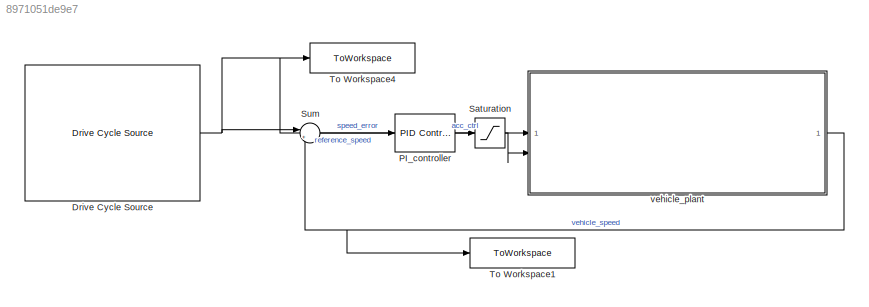
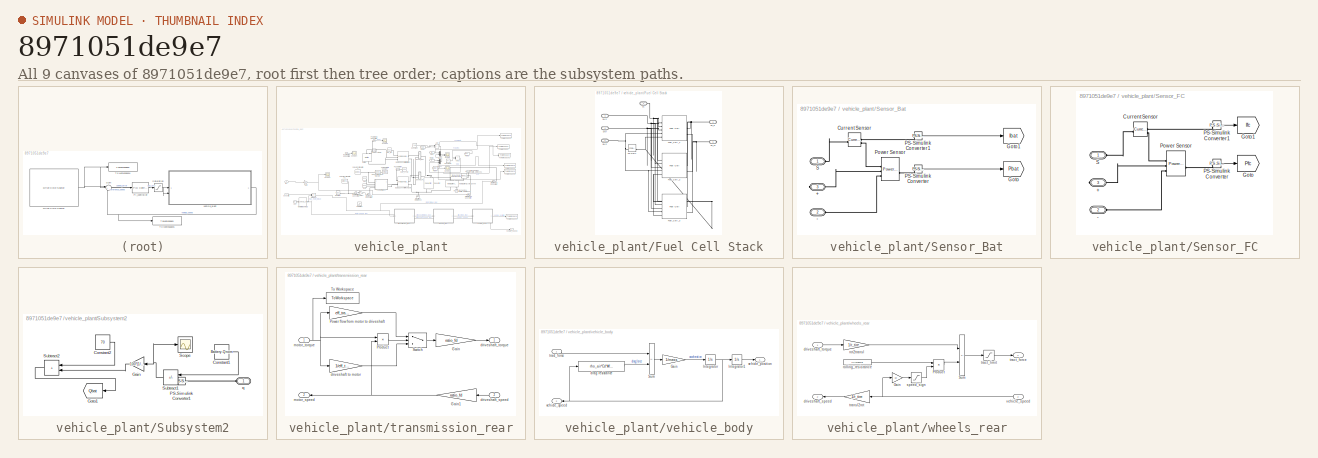
[diagram: thumbnail index - all 9 canvases of the model, root first then tree order]
MODEL slx_8971051de9e7
KIND model
CONFIG AbsTol = auto
CONFIG EnableMultiTasking = off
CONFIG FixedStep = 0.1
CONFIG MaxStep = auto
CONFIG MinStep = auto
CONFIG RelTol = 1e-3
CONFIG SampleTimeConstraint = Unconstrained
CONFIG SolverName = VariableStepAuto
CONFIG StartTime = 0
CONFIG StopTime = 2474
BLOCK [Reference] Drive Cycle Source  REF=autolibshared/Drive Cycle Source
  AttributesFormatString = %<cycleVar> (%<tfinal>)
  LibrarySourceBlock = autolibscenario/Drive Cycle Source
  SourceBlock = autolibshared/Drive Cycle Source
  SourceType = Drive Cycle Source
BLOCK [Reference] PI_controller   REF=slpidlib/PID Controller
  SourceBlock = slpidlib/PID Controller
  SourceType = PID 1dof
BLOCK [Saturate] Saturation
  LowerLimit = -100
  UpperLimit = 100
BLOCK [Sum] Sum
  Inputs = |+-
BLOCK [ToWorkspace] To Workspace1
  FixptAsFi = on
  MaxDataPoints = inf
  SampleTime = -1
  SaveFormat = Timeseries
  VariableName = vehicle_speed
BLOCK [ToWorkspace] To Workspace4
  FixptAsFi = on
  MaxDataPoints = inf
  SampleTime = -1
  SaveFormat = Timeseries
  VariableName = reference_speed
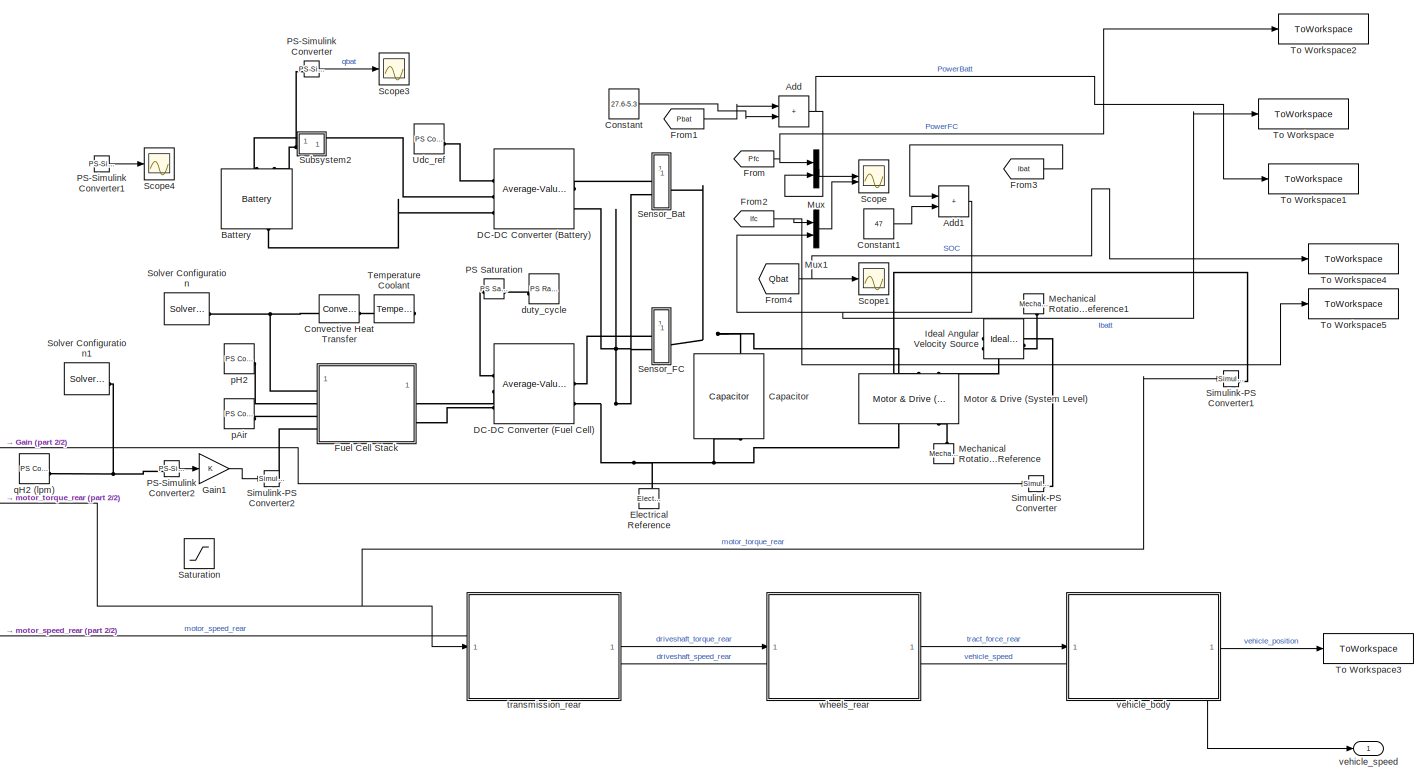
[diagram: vehicle_plant - part 1/2, most of the canvas]
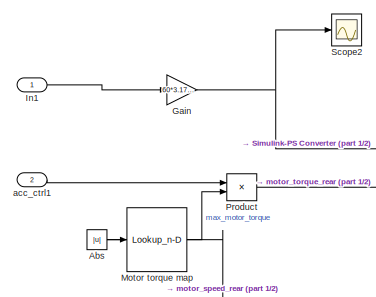
[diagram: vehicle_plant - part 2/2, middle left region]
BLOCK [SubSystem] vehicle_plant
BLOCK [Abs] vehicle_plant/Abs
  SaturateOnIntegerOverflow = off
BLOCK [Sum] vehicle_plant/Add
  IconShape = rectangular
BLOCK [Sum] vehicle_plant/Add1
  IconShape = rectangular
BLOCK [Reference] vehicle_plant/Battery  REF=batteryecm_lib/Battery
  LibrarySourceBlock = ee_lib/Sources/Battery
  NameLocation = right
  SourceBlock = batteryecm_lib/Battery
  SourceType = Battery
BLOCK [Reference] vehicle_plant/Capacitor  REF=fl_lib/Electrical/Electrical Elements/Capacitor
  NameLocation = left
  SourceBlock = fl_lib/Electrical/Electrical Elements/Capacitor
  SourceType = Capacitor
BLOCK [Constant] vehicle_plant/Constant
  Value = 27.6-5.3
BLOCK [Constant] vehicle_plant/Constant1
  Value = 47
BLOCK [Reference] vehicle_plant/Convective Heat Transfer  REF=fl_lib/Thermal/Thermal Elements/Convective Heat
Transfer
  SourceBlock = fl_lib/Thermal/Thermal Elements/Convective Heat\nTransfer
  SourceType = Convective Heat\nTransfer
BLOCK [Reference] vehicle_plant/DC-DC Converter (Battery)  REF=ee_lib/Semiconductors &
Converters/Converters/Average-Value DC-DC
Converter
  SourceBlock = ee_lib/Semiconductors &\nConverters/Converters/Average-Value DC-DC\nConverter
  SourceType = Average-Value DC-DC\nConverter
BLOCK [Reference] vehicle_plant/DC-DC Converter (Fuel Cell)  REF=ee_lib/Semiconductors &
Converters/Converters/Average-Value DC-DC
Converter
  SourceBlock = ee_lib/Semiconductors &\nConverters/Converters/Average-Value DC-DC\nConverter
  SourceType = Average-Value DC-DC\nConverter
BLOCK [Reference] vehicle_plant/Electrical Reference  REF=fl_lib/Electrical/Electrical Elements/Electrical Reference
  NameLocation = right
  SourceBlock = fl_lib/Electrical/Electrical Elements/Electrical Reference
  SourceType = Electrical Reference
BLOCK [From] vehicle_plant/From
  GotoTag = Pfc
  TagVisibility = global
BLOCK [From] vehicle_plant/From1
  GotoTag = Pbat
  TagVisibility = global
BLOCK [From] vehicle_plant/From2
  GotoTag = Ifc
  TagVisibility = global
BLOCK [From] vehicle_plant/From3
  GotoTag = Ibat
  TagVisibility = global
BLOCK [From] vehicle_plant/From4
  GotoTag = Qbat
  TagVisibility = global
BLOCK [SubSystem] vehicle_plant/Fuel Cell Stack
BLOCK [Reference] vehicle_plant/Fuel Cell Stack/Fuel_Cell_1  REF=ee_lib/Sources/Fuel Cell
  SourceBlock = ee_lib/Sources/Fuel Cell
  SourceType = Fuel Cell
BLOCK [Reference] vehicle_plant/Fuel Cell Stack/Fuel_Cell_2  REF=ee_lib/Sources/Fuel Cell
  SourceBlock = ee_lib/Sources/Fuel Cell
  SourceType = Fuel Cell
BLOCK [Reference] vehicle_plant/Fuel Cell Stack/Fuel_Cell_3  REF=ee_lib/Sources/Fuel Cell
  SourceBlock = ee_lib/Sources/Fuel Cell
  SourceType = Fuel Cell
BLOCK [Reference] vehicle_plant/Fuel Cell Stack/PS Gain  REF=fl_lib/Physical Signals/Functions/PS Gain
  SourceBlock = fl_lib/Physical Signals/Functions/PS Gain
  SourceType = PS Gain
BLOCK [PMIOPort] vehicle_plant/Fuel Cell Stack/Th
  Side = Left
BLOCK [PMIOPort] vehicle_plant/Fuel Cell Stack/dc_m
  Port = 5
  Side = Right
BLOCK [PMIOPort] vehicle_plant/Fuel Cell Stack/dc_p
  Port = 2
  Side = Right
BLOCK [PMIOPort] vehicle_plant/Fuel Cell Stack/pAir
  Port = 4
  Side = Left
BLOCK [PMIOPort] vehicle_plant/Fuel Cell Stack/pH2
  Port = 3
  Side = Left
BLOCK [PMIOPort] vehicle_plant/Fuel Cell Stack/qH2
  Port = 6
  Side = Left
BLOCK [Gain] vehicle_plant/Gain
  Gain = 60*3.1746/2*pi
BLOCK [Gain] vehicle_plant/Gain1
BLOCK [Reference] vehicle_plant/Ideal Angular Velocity Source  REF=fl_lib/Mechanical/Mechanical Sources/Ideal Angular
Velocity Source
  NameLocation = top
  SourceBlock = fl_lib/Mechanical/Mechanical Sources/Ideal Angular\nVelocity Source
  SourceType = Ideal Angular\nVelocity Source
BLOCK [Inport] vehicle_plant/In1
BLOCK [Reference] vehicle_plant/Mechanical Rotational Reference  REF=fl_lib/Mechanical/Rotational Elements/Mechanical
Rotational Reference
  NameLocation = right
  SourceBlock = fl_lib/Mechanical/Rotational Elements/Mechanical\nRotational Reference
  SourceType = Mechanical\nRotational Reference
BLOCK [Reference] vehicle_plant/Mechanical Rotational Reference1  REF=fl_lib/Mechanical/Rotational Elements/Mechanical
Rotational Reference
  NameLocation = left
  SourceBlock = fl_lib/Mechanical/Rotational Elements/Mechanical\nRotational Reference
  SourceType = Mechanical\nRotational Reference
BLOCK [Reference] vehicle_plant/Motor & Drive (System Level)  REF=ee_lib/Electromechanical/Motor & Drive
(System Level)
  NameLocation = right
  SourceBlock = ee_lib/Electromechanical/Motor & Drive\n(System Level)
  SourceType = Motor & Drive\n(System Level)
BLOCK [Lookup_n-D] vehicle_plant/Motor torque map
  BreakpointsForDimension1 = EM_Omega_Max
  BreakpointsForDimension2 = alpha
  ExtrapMethod = Clip
  InputPortMap = u0
  InternalRulePriority = Speed
  NumberOfTableDimensions = 1
  RndMeth = Simplest
  Table = EM_Torque_Max
  UseLastTableValue = on
BLOCK [Mux] vehicle_plant/Mux
  DisplayOption = bar
  Inputs = 2
BLOCK [Mux] vehicle_plant/Mux1
  DisplayOption = bar
  Inputs = 2
BLOCK [Reference] vehicle_plant/PS Saturation  REF=fl_lib/Physical Signals/Nonlinear Operators/PS Saturation
  SourceBlock = fl_lib/Physical Signals/Nonlinear Operators/PS Saturation
  SourceType = PS Saturation
BLOCK [Reference] vehicle_plant/PS-Simulink Converter  REF=nesl_utility/PS-Simulink
Converter
  SourceBlock = nesl_utility/PS-Simulink\nConverter
  SourceType = PS-Simulink\nConverter
BLOCK [Reference] vehicle_plant/PS-Simulink Converter1  REF=nesl_utility/PS-Simulink
Converter
  SourceBlock = nesl_utility/PS-Simulink\nConverter
  SourceType = PS-Simulink\nConverter
BLOCK [Reference] vehicle_plant/PS-Simulink Converter2  REF=nesl_utility/PS-Simulink
Converter
  NameLocation = left
  SourceBlock = nesl_utility/PS-Simulink\nConverter
  SourceType = PS-Simulink\nConverter
BLOCK [Product] vehicle_plant/Product
BLOCK [Saturate] vehicle_plant/Saturation
BLOCK [Scope] vehicle_plant/Scope
  Floating = off
  NumInputPorts = 2
  ScopeSpecificationString = Simulink.scopes.TimeScopeBlockCfg('CurrentConfiguration', extmgr.ConfigurationSet(extmgr.Configuration('Core','General UI',true,'FigureColor',[1 1 1]),extmgr.Configuration('Core','Source UI',true),extmgr.Configuration('Sources','WiredSimulink',true,'DataLoggingVariableName','ScopeData2'),extmgr.Configuration('Visuals','Time Domain',true,'SerializedDisplays',{struct('MinYLimReal','-76.3715','MaxYLi...<+2663ch>
BLOCK [Scope] vehicle_plant/Scope1
  Floating = off
  NumInputPorts = 1
  ScopeSpecificationString = Simulink.scopes.TimeScopeBlockCfg('CurrentConfiguration', extmgr.ConfigurationSet(extmgr.Configuration('Core','General UI',true,'FigureColor',[1 1 1]),extmgr.Configuration('Core','Source UI',true),extmgr.Configuration('Sources','WiredSimulink',true,'DataLoggingVariableName','ScopeData3'),extmgr.Configuration('Visuals','Time Domain',true,'SerializedDisplays',{struct('MinYLimReal','67.58809','MaxYLi...<+2340ch>
BLOCK [Scope] vehicle_plant/Scope2
  Floating = off
  NumInputPorts = 1
  ScopeSpecificationString = Simulink.scopes.TimeScopeBlockCfg('CurrentConfiguration', extmgr.ConfigurationSet(extmgr.Configuration('Core','General UI',true),extmgr.Configuration('Core','Source UI',true),extmgr.Configuration('Sources','WiredSimulink',true,'DataLoggingVariableName','ScopeData1'),extmgr.Configuration('Visuals','Time Domain',true,'SerializedDisplays',{struct('MinYLimReal','-947.98092','MaxYLimReal','8531.82827',...<+1436ch>
BLOCK [Scope] vehicle_plant/Scope3
  Floating = off
  NumInputPorts = 1
  ScopeSpecificationString = Simulink.scopes.TimeScopeBlockCfg('CurrentConfiguration', extmgr.ConfigurationSet(extmgr.Configuration('Core','General UI',true),extmgr.Configuration('Core','Source UI',true),extmgr.Configuration('Sources','WiredSimulink',true,'DataLoggingVariableName','ScopeData1'),extmgr.Configuration('Visuals','Time Domain',true,'SerializedDisplays',{struct('MinYLimReal','1773810.25029','MaxYLimReal','1894673.8...<+1456ch>
BLOCK [Scope] vehicle_plant/Scope4
  Floating = off
  NumInputPorts = 1
  ScopeSpecificationString = Simulink.scopes.TimeScopeBlockCfg('CurrentConfiguration', extmgr.ConfigurationSet(extmgr.Configuration('Core','General UI',true),extmgr.Configuration('Core','Source UI',true),extmgr.Configuration('Sources','WiredSimulink',true,'DataLoggingVariableName','ScopeData1'),extmgr.Configuration('Visuals','Time Domain',true,'SerializedDisplays',{struct('MinYLimReal','-1.00000','MaxYLimReal','1.00000','YLab...<+1416ch>
BLOCK [SubSystem] vehicle_plant/Sensor_Bat
BLOCK [PMIOPort] vehicle_plant/Sensor_Bat/+
  Port = 3
  Side = Right
BLOCK [PMIOPort] vehicle_plant/Sensor_Bat/-
  Port = 2
  Side = Left
BLOCK [Reference] vehicle_plant/Sensor_Bat/Current Sensor  REF=fl_lib/Electrical/Electrical Sensors/Current Sensor
  SourceBlock = fl_lib/Electrical/Electrical Sensors/Current Sensor
  SourceType = Current Sensor
BLOCK [Goto] vehicle_plant/Sensor_Bat/Goto
  GotoTag = Pbat
  TagVisibility = global
BLOCK [Goto] vehicle_plant/Sensor_Bat/Goto1
  GotoTag = Ibat
  TagVisibility = global
BLOCK [Reference] vehicle_plant/Sensor_Bat/PS-Simulink Converter  REF=nesl_utility/PS-Simulink
Converter
  SourceBlock = nesl_utility/PS-Simulink\nConverter
  SourceType = PS-Simulink\nConverter
BLOCK [Reference] vehicle_plant/Sensor_Bat/PS-Simulink Converter1  REF=nesl_utility/PS-Simulink
Converter
  SourceBlock = nesl_utility/PS-Simulink\nConverter
  SourceType = PS-Simulink\nConverter
BLOCK [Reference] vehicle_plant/Sensor_Bat/Power Sensor  REF=ee_lib/Sensors &
Transducers/Power Sensor
  SourceBlock = ee_lib/Sensors &\nTransducers/Power Sensor
  SourceType = Power Sensor
BLOCK [PMIOPort] vehicle_plant/Sensor_Bat/S
  Side = Left
BLOCK [SubSystem] vehicle_plant/Sensor_FC
BLOCK [PMIOPort] vehicle_plant/Sensor_FC/+
  Port = 3
  Side = Right
BLOCK [PMIOPort] vehicle_plant/Sensor_FC/-
  Port = 2
  Side = Left
BLOCK [Reference] vehicle_plant/Sensor_FC/Current Sensor  REF=fl_lib/Electrical/Electrical Sensors/Current Sensor
  SourceBlock = fl_lib/Electrical/Electrical Sensors/Current Sensor
  SourceType = Current Sensor
BLOCK [Goto] vehicle_plant/Sensor_FC/Goto
  GotoTag = Pfc
  TagVisibility = global
BLOCK [Goto] vehicle_plant/Sensor_FC/Goto1
  GotoTag = Ifc
  TagVisibility = global
BLOCK [Reference] vehicle_plant/Sensor_FC/PS-Simulink Converter  REF=nesl_utility/PS-Simulink
Converter
  SourceBlock = nesl_utility/PS-Simulink\nConverter
  SourceType = PS-Simulink\nConverter
BLOCK [Reference] vehicle_plant/Sensor_FC/PS-Simulink Converter1  REF=nesl_utility/PS-Simulink
Converter
  SourceBlock = nesl_utility/PS-Simulink\nConverter
  SourceType = PS-Simulink\nConverter
BLOCK [Reference] vehicle_plant/Sensor_FC/Power Sensor  REF=ee_lib/Sensors &
Transducers/Power Sensor
  SourceBlock = ee_lib/Sensors &\nTransducers/Power Sensor
  SourceType = Power Sensor
BLOCK [PMIOPort] vehicle_plant/Sensor_FC/S
  Side = Left
BLOCK [Reference] vehicle_plant/Simulink-PS Converter  REF=nesl_utility/Simulink-PS
Converter
  SourceBlock = nesl_utility/Simulink-PS\nConverter
  SourceType = Simulink-PS\nConverter
BLOCK [Reference] vehicle_plant/Simulink-PS Converter1  REF=nesl_utility/Simulink-PS
Converter
  SourceBlock = nesl_utility/Simulink-PS\nConverter
  SourceType = Simulink-PS\nConverter
BLOCK [Reference] vehicle_plant/Simulink-PS Converter2  REF=nesl_utility/Simulink-PS
Converter
  SourceBlock = nesl_utility/Simulink-PS\nConverter
  SourceType = Simulink-PS\nConverter
BLOCK [Reference] vehicle_plant/Solver Configuration  REF=nesl_utility/Solver
Configuration
  SourceBlock = nesl_utility/Solver\nConfiguration
  SourceType = Solver\nConfiguration
BLOCK [Reference] vehicle_plant/Solver Configuration1  REF=nesl_utility/Solver
Configuration
  SourceBlock = nesl_utility/Solver\nConfiguration
  SourceType = Solver\nConfiguration
BLOCK [SubSystem] vehicle_plant/Subsystem2
BLOCK [Constant] vehicle_plant/Subsystem2/Constant1
  Value = Battery.Qnom
BLOCK [Constant] vehicle_plant/Subsystem2/Constant2
  Value = 70
BLOCK [Gain] vehicle_plant/Subsystem2/Gain
  Gain = 100*(1/Battery.Qnom)
BLOCK [Goto] vehicle_plant/Subsystem2/Goto1
  GotoTag = Qbat
  TagVisibility = global
BLOCK [Reference] vehicle_plant/Subsystem2/PS-Simulink Converter1  REF=nesl_utility/PS-Simulink
Converter
  SourceBlock = nesl_utility/PS-Simulink\nConverter
  SourceType = PS-Simulink\nConverter
BLOCK [Scope] vehicle_plant/Subsystem2/Scope
  Floating = off
  NumInputPorts = 1
  ScopeSpecificationString = Simulink.scopes.TimeScopeBlockCfg('CurrentConfiguration', extmgr.ConfigurationSet(extmgr.Configuration('Core','General UI',true),extmgr.Configuration('Core','Source UI',true),extmgr.Configuration('Sources','WiredSimulink',true,'DataLoggingVariableName','ScopeData1'),extmgr.Configuration('Visuals','Time Domain',true,'SerializedDisplays',{struct('MinYLimReal','-26.29829','MaxYLimReal','7.27493','YLa...<+1427ch>
BLOCK [Sum] vehicle_plant/Subsystem2/Subtract1
  IconShape = rectangular
  Inputs = +-
  NameLocation = top
BLOCK [Sum] vehicle_plant/Subsystem2/Subtract2
  IconShape = rectangular
  NameLocation = top
BLOCK [PMIOPort] vehicle_plant/Subsystem2/q
  Side = Left
BLOCK [Reference] vehicle_plant/Temperature Coolant  REF=fl_lib/Thermal/Thermal Sources/Temperature Source
  NameLocation = top
  SourceBlock = fl_lib/Thermal/Thermal Sources/Temperature Source
  SourceType = Temperature Source
BLOCK [ToWorkspace] vehicle_plant/To Workspace
  FixptAsFi = on
  MaxDataPoints = inf
  SampleTime = -1
  SaveFormat = Timeseries
  VariableName = Ibatt
BLOCK [ToWorkspace] vehicle_plant/To Workspace1
  FixptAsFi = on
  MaxDataPoints = inf
  SampleTime = -1
  SaveFormat = Timeseries
  VariableName = PowerBatt
BLOCK [ToWorkspace] vehicle_plant/To Workspace2
  FixptAsFi = on
  MaxDataPoints = inf
  SampleTime = -1
  SaveFormat = Timeseries
  VariableName = powerFC
BLOCK [ToWorkspace] vehicle_plant/To Workspace3
  FixptAsFi = on
  MaxDataPoints = inf
  SampleTime = -1
  SaveFormat = Timeseries
  VariableName = dist
BLOCK [ToWorkspace] vehicle_plant/To Workspace4
  FixptAsFi = on
  MaxDataPoints = inf
  SampleTime = -1
  SaveFormat = Timeseries
  VariableName = SOC
BLOCK [ToWorkspace] vehicle_plant/To Workspace5
  FixptAsFi = on
  MaxDataPoints = inf
  SampleTime = -1
  SaveFormat = Timeseries
  VariableName = IFC
BLOCK [Reference] vehicle_plant/Udc_ref  REF=fl_lib/Physical Signals/Sources/PS Constant
  SourceBlock = fl_lib/Physical Signals/Sources/PS Constant
  SourceType = PS Constant
BLOCK [Inport] vehicle_plant/acc_ctrl1
  Port = 2
BLOCK [Reference] vehicle_plant/duty_cycle  REF=fl_lib/Physical Signals/Sources/PS Ramp
  SourceBlock = fl_lib/Physical Signals/Sources/PS Ramp
  SourceType = PS Ramp
BLOCK [Reference] vehicle_plant/pAir  REF=fl_lib/Physical Signals/Sources/PS Constant
  SourceBlock = fl_lib/Physical Signals/Sources/PS Constant
  SourceType = PS Constant
BLOCK [Reference] vehicle_plant/pH2  REF=fl_lib/Physical Signals/Sources/PS Constant
  SourceBlock = fl_lib/Physical Signals/Sources/PS Constant
  SourceType = PS Constant
BLOCK [Reference] vehicle_plant/qH2 (lpm)  REF=fl_lib/Physical Signals/Sources/PS Constant
  SourceBlock = fl_lib/Physical Signals/Sources/PS Constant
  SourceType = PS Constant
BLOCK [SubSystem] vehicle_plant/transmission_rear
  PortSchema = {"entries":[{"content":{"sides":[{"content":{"connectorIds":["In1","Out2"]},"type":"ConnectorPlacement.EquallySpacedRectSide","uuid":"9ce22768-c180-462f-8dee-6b9f8dff1999"},{"content":{"connectorIds":["Out1","In2"],"side":"RIGHT"},"type":"ConnectorPlacement.EquallySpacedRectSide","uuid":"e4325ae3-643c-48c0-9eeb-31c7447b47db"},{"content":{"connectorIds":[],"side":"TOP"},"type":"ConnectorPlacement.E...<+253ch>
BLOCK [Gain] vehicle_plant/transmission_rear/Gain
  Gain = ratio_fd
BLOCK [Gain] vehicle_plant/transmission_rear/Gain1
  Gain = ratio_fd
BLOCK [Gain] vehicle_plant/transmission_rear/Power flow from motor to driveshaft
  Gain = eff_trans
BLOCK [Product] vehicle_plant/transmission_rear/Product
BLOCK [Switch] vehicle_plant/transmission_rear/Switch
  Criteria = u2 > Threshold
  InputSameDT = off
  SaturateOnIntegerOverflow = off
BLOCK [ToWorkspace] vehicle_plant/transmission_rear/To Workspace
  FixptAsFi = on
  MaxDataPoints = inf
  SampleTime = -1
  VariableName = Torque_sim
BLOCK [Gain] vehicle_plant/transmission_rear/driveshaft to motor
  Gain = 1/eff_trans
BLOCK [Inport] vehicle_plant/transmission_rear/driveshaft_speed
  Port = 2
BLOCK [Outport] vehicle_plant/transmission_rear/driveshaft_torque
BLOCK [Outport] vehicle_plant/transmission_rear/motor_speed
  Port = 2
BLOCK [Inport] vehicle_plant/transmission_rear/motor_torque
BLOCK [SubSystem] vehicle_plant/vehicle_body
  PortSchema = {"entries":[{"content":{"sides":[{"content":{"connectorIds":["In1","Out2"]},"type":"ConnectorPlacement.EquallySpacedRectSide","uuid":"9ce22768-c180-462f-8dee-6b9f8dff1999"},{"content":{"connectorIds":["Out1"],"side":"RIGHT"},"type":"ConnectorPlacement.EquallySpacedRectSide","uuid":"e4325ae3-643c-48c0-9eeb-31c7447b47db"},{"content":{"connectorIds":[],"side":"TOP"},"type":"ConnectorPlacement.Equally...<+247ch>
BLOCK [Gain] vehicle_plant/vehicle_body/Gain
  Gain = 1/mass
BLOCK [Integrator] vehicle_plant/vehicle_body/Integrator
BLOCK [Integrator] vehicle_plant/vehicle_body/Integrator1
BLOCK [Sum] vehicle_plant/vehicle_body/Sum
  IconShape = rectangular
  Inputs = +-
BLOCK [Fcn] vehicle_plant/vehicle_body/drag resistance
  Expr = rho_air*Cd*Af/2*u*abs(u)
BLOCK [Inport] vehicle_plant/vehicle_body/tract_force
BLOCK [Outport] vehicle_plant/vehicle_body/vehicle_position
BLOCK [Outport] vehicle_plant/vehicle_body/vehicle_speed
  Port = 2
BLOCK [Outport] vehicle_plant/vehicle_speed
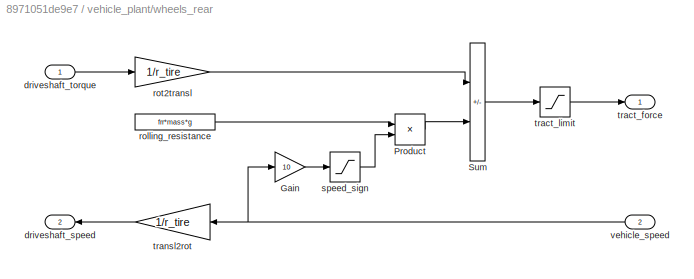
BLOCK [SubSystem] vehicle_plant/wheels_rear
  PortSchema = {"entries":[{"content":{"sides":[{"content":{"connectorIds":["In1","Out2"]},"type":"ConnectorPlacement.EquallySpacedRectSide","uuid":"9ce22768-c180-462f-8dee-6b9f8dff1999"},{"content":{"connectorIds":["Out1","In2"],"side":"RIGHT"},"type":"ConnectorPlacement.EquallySpacedRectSide","uuid":"e4325ae3-643c-48c0-9eeb-31c7447b47db"},{"content":{"connectorIds":[],"side":"TOP"},"type":"ConnectorPlacement.E...<+253ch>
BLOCK [Gain] vehicle_plant/wheels_rear/Gain
  Gain = 10
BLOCK [Product] vehicle_plant/wheels_rear/Product
BLOCK [Sum] vehicle_plant/wheels_rear/Sum
  IconShape = rectangular
  Inputs = +-
BLOCK [Outport] vehicle_plant/wheels_rear/driveshaft_speed
  Port = 2
BLOCK [Inport] vehicle_plant/wheels_rear/driveshaft_torque
BLOCK [Constant] vehicle_plant/wheels_rear/rolling_resistance
  Value = frr*mass*g
BLOCK [Gain] vehicle_plant/wheels_rear/rot2transl
  Gain = 1/r_tire
BLOCK [Saturate] vehicle_plant/wheels_rear/speed_sign
  LinearizeAsGain = off
  LowerLimit = -1
  UpperLimit = 1
BLOCK [Outport] vehicle_plant/wheels_rear/tract_force
BLOCK [Saturate] vehicle_plant/wheels_rear/tract_limit
  LowerLimit = Ft_r_decl
  UpperLimit = Ft_r_accl
BLOCK [Gain] vehicle_plant/wheels_rear/transl2rot
  Gain = 1/r_tire
BLOCK [Inport] vehicle_plant/wheels_rear/vehicle_speed
  Port = 2
NET Drive Cycle Source:1 -> Sum:1, To Workspace4:1, vehicle_plant:1
LINE PI_controller :1 -> Saturation:1
LINE Saturation:1 -> vehicle_plant:2
LINE Sum:1 -> PI_controller :1
LINE vehicle_plant/Abs:1 -> vehicle_plant/Motor torque map:1
NET vehicle_plant/Add1:1 -> vehicle_plant/Mux1:2, vehicle_plant/To Workspace:1
NET vehicle_plant/Add:1 -> vehicle_plant/Mux:2, vehicle_plant/To Workspace1:1
LINE vehicle_plant/Constant1:1 -> vehicle_plant/Add1:2
LINE vehicle_plant/Constant:1 -> vehicle_plant/Add:2
LINE vehicle_plant/From1:1 -> vehicle_plant/Add:1
NET vehicle_plant/From2:1 -> vehicle_plant/Mux1:1, vehicle_plant/To Workspace5:1
LINE vehicle_plant/From3:1 -> vehicle_plant/Add1:1
NET vehicle_plant/From4:1 -> vehicle_plant/Scope1:1, vehicle_plant/To Workspace4:1
NET vehicle_plant/From:1 -> vehicle_plant/Mux:1, vehicle_plant/To Workspace2:1
LINE vehicle_plant/Gain1:1 -> vehicle_plant/Simulink-PS Converter2:1
NET vehicle_plant/Gain:1 -> vehicle_plant/Scope2:1, vehicle_plant/Simulink-PS Converter:1
LINE vehicle_plant/In1:1 -> vehicle_plant/Gain:1
LINE vehicle_plant/Motor torque map:1 -> vehicle_plant/Product:2
LINE vehicle_plant/Mux1:1 -> vehicle_plant/Scope:2
LINE vehicle_plant/Mux:1 -> vehicle_plant/Scope:1
LINE vehicle_plant/PS-Simulink Converter1:1 -> vehicle_plant/Scope4:1
LINE vehicle_plant/PS-Simulink Converter2:1 -> vehicle_plant/Gain1:1
LINE vehicle_plant/PS-Simulink Converter:1 -> vehicle_plant/Scope3:1
NET vehicle_plant/Product:1 -> vehicle_plant/Simulink-PS Converter1:1, vehicle_plant/transmission_rear:1
LINE vehicle_plant/Sensor_Bat/PS-Simulink Converter1:1 -> vehicle_plant/Sensor_Bat/Goto1:1
LINE vehicle_plant/Sensor_Bat/PS-Simulink Converter:1 -> vehicle_plant/Sensor_Bat/Goto:1
LINE vehicle_plant/Sensor_FC/PS-Simulink Converter1:1 -> vehicle_plant/Sensor_FC/Goto1:1
LINE vehicle_plant/Sensor_FC/PS-Simulink Converter:1 -> vehicle_plant/Sensor_FC/Goto:1
LINE vehicle_plant/Subsystem2/Constant1:1 -> vehicle_plant/Subsystem2/Subtract1:1
LINE vehicle_plant/Subsystem2/Constant2:1 -> vehicle_plant/Subsystem2/Subtract2:1
LINE vehicle_plant/Subsystem2/Gain:1 -> vehicle_plant/Subsystem2/Subtract2:2
LINE vehicle_plant/Subsystem2/PS-Simulink Converter1:1 -> vehicle_plant/Subsystem2/Subtract1:2
NET vehicle_plant/Subsystem2/Subtract1:1 -> vehicle_plant/Subsystem2/Gain:1, vehicle_plant/Subsystem2/Scope:1
LINE vehicle_plant/Subsystem2/Subtract2:1 -> vehicle_plant/Subsystem2/Goto1:1
LINE vehicle_plant/acc_ctrl1:1 -> vehicle_plant/Product:1
NET vehicle_plant/transmission_rear/Gain1:1 -> vehicle_plant/transmission_rear/Product:2, vehicle_plant/transmission_rear/motor_speed:1
LINE vehicle_plant/transmission_rear/Gain:1 -> vehicle_plant/transmission_rear/driveshaft_torque:1
LINE vehicle_plant/transmission_rear/Power flow from motor to driveshaft:1 -> vehicle_plant/transmission_rear/Switch:1
LINE vehicle_plant/transmission_rear/Product:1 -> vehicle_plant/transmission_rear/Switch:2
LINE vehicle_plant/transmission_rear/Switch:1 -> vehicle_plant/transmission_rear/Gain:1
LINE vehicle_plant/transmission_rear/driveshaft to motor:1 -> vehicle_plant/transmission_rear/Switch:3
LINE vehicle_plant/transmission_rear/driveshaft_speed:1 -> vehicle_plant/transmission_rear/Gain1:1
NET vehicle_plant/transmission_rear/motor_torque:1 -> vehicle_plant/transmission_rear/Power flow from motor to driveshaft:1, vehicle_plant/transmission_rear/Product:1, vehicle_plant/transmission_rear/To Workspace:1, vehicle_plant/transmission_rear/driveshaft to motor:1
LINE vehicle_plant/transmission_rear:1 -> vehicle_plant/wheels_rear:1
LINE vehicle_plant/transmission_rear:2 -> vehicle_plant/Abs:1
LINE vehicle_plant/vehicle_body/Gain:1 -> vehicle_plant/vehicle_body/Integrator:1
LINE vehicle_plant/vehicle_body/Integrator1:1 -> vehicle_plant/vehicle_body/vehicle_position:1
NET vehicle_plant/vehicle_body/Integrator:1 -> vehicle_plant/vehicle_body/Integrator1:1, vehicle_plant/vehicle_body/drag resistance:1, vehicle_plant/vehicle_body/vehicle_speed:1
LINE vehicle_plant/vehicle_body/Sum:1 -> vehicle_plant/vehicle_body/Gain:1
LINE vehicle_plant/vehicle_body/drag resistance:1 -> vehicle_plant/vehicle_body/Sum:2
LINE vehicle_plant/vehicle_body/tract_force:1 -> vehicle_plant/vehicle_body/Sum:1
LINE vehicle_plant/vehicle_body:1 -> vehicle_plant/To Workspace3:1
NET vehicle_plant/vehicle_body:2 -> vehicle_plant/vehicle_speed:1, vehicle_plant/wheels_rear:2
LINE vehicle_plant/wheels_rear/Gain:1 -> vehicle_plant/wheels_rear/speed_sign:1
LINE vehicle_plant/wheels_rear/Product:1 -> vehicle_plant/wheels_rear/Sum:2
LINE vehicle_plant/wheels_rear/Sum:1 -> vehicle_plant/wheels_rear/tract_limit:1
LINE vehicle_plant/wheels_rear/driveshaft_torque:1 -> vehicle_plant/wheels_rear/rot2transl:1
LINE vehicle_plant/wheels_rear/rolling_resistance:1 -> vehicle_plant/wheels_rear/Product:1
LINE vehicle_plant/wheels_rear/rot2transl:1 -> vehicle_plant/wheels_rear/Sum:1
LINE vehicle_plant/wheels_rear/speed_sign:1 -> vehicle_plant/wheels_rear/Product:2
LINE vehicle_plant/wheels_rear/tract_limit:1 -> vehicle_plant/wheels_rear/tract_force:1
LINE vehicle_plant/wheels_rear/transl2rot:1 -> vehicle_plant/wheels_rear/driveshaft_speed:1
NET vehicle_plant/wheels_rear/vehicle_speed:1 -> vehicle_plant/wheels_rear/Gain:1, vehicle_plant/wheels_rear/transl2rot:1
LINE vehicle_plant/wheels_rear:1 -> vehicle_plant/vehicle_body:1
LINE vehicle_plant/wheels_rear:2 -> vehicle_plant/transmission_rear:2
NET vehicle_plant:1 -> Sum:2, To Workspace1:1
PLINE vehicle_plant/Battery:LConn1 -- vehicle_plant/DC-DC Converter (Battery):LConn2
PNET net1: vehicle_plant/Battery:LConn2 -- vehicle_plant/PS-Simulink Converter:LConn1 -- vehicle_plant/Subsystem2:LConn1
PLINE vehicle_plant/Battery:RConn1 -- vehicle_plant/DC-DC Converter (Battery):LConn3
PNET net2: vehicle_plant/Capacitor:LConn1 -- vehicle_plant/Motor & Drive (System Level):LConn1 -- vehicle_plant/Sensor_Bat:RConn1 -- vehicle_plant/Sensor_FC:RConn1
PNET net3: vehicle_plant/Capacitor:RConn1 -- vehicle_plant/DC-DC Converter (Battery):RConn2 -- vehicle_plant/DC-DC Converter (Fuel Cell):RConn2 -- vehicle_plant/Electrical Reference:LConn1 -- vehicle_plant/Motor & Drive (System Level):RConn1 -- vehicle_plant/Sensor_Bat:LConn2 -- vehicle_plant/Sensor_FC:LConn2
PNET net4: vehicle_plant/Convective Heat Transfer:LConn1 -- vehicle_plant/Fuel Cell Stack:LConn1 -- vehicle_plant/Solver Configuration:RConn1
PLINE vehicle_plant/Convective Heat Transfer:RConn1 -- vehicle_plant/Temperature Coolant:LConn1
PLINE vehicle_plant/DC-DC Converter (Battery):LConn1 -- vehicle_plant/Udc_ref:RConn1
PLINE vehicle_plant/DC-DC Converter (Battery):RConn1 -- vehicle_plant/Sensor_Bat:LConn1
PLINE vehicle_plant/DC-DC Converter (Fuel Cell):LConn1 -- vehicle_plant/PS Saturation:RConn1
PLINE vehicle_plant/DC-DC Converter (Fuel Cell):LConn2 -- vehicle_plant/Fuel Cell Stack:RConn1
PLINE vehicle_plant/DC-DC Converter (Fuel Cell):LConn3 -- vehicle_plant/Fuel Cell Stack:RConn2
PLINE vehicle_plant/DC-DC Converter (Fuel Cell):RConn1 -- vehicle_plant/Sensor_FC:LConn1
PNET net5: vehicle_plant/Fuel Cell Stack/Fuel_Cell_1:LConn1 -- vehicle_plant/Fuel Cell Stack/Fuel_Cell_2:LConn1 -- vehicle_plant/Fuel Cell Stack/Fuel_Cell_3:LConn1 -- vehicle_plant/Fuel Cell Stack/Th:RConn1
PNET net6: vehicle_plant/Fuel Cell Stack/Fuel_Cell_1:LConn2 -- vehicle_plant/Fuel Cell Stack/Fuel_Cell_2:LConn2 -- vehicle_plant/Fuel Cell Stack/Fuel_Cell_3:LConn2 -- vehicle_plant/Fuel Cell Stack/pH2:RConn1
PNET net7: vehicle_plant/Fuel Cell Stack/Fuel_Cell_1:LConn3 -- vehicle_plant/Fuel Cell Stack/Fuel_Cell_2:LConn3 -- vehicle_plant/Fuel Cell Stack/Fuel_Cell_3:LConn3 -- vehicle_plant/Fuel Cell Stack/pAir:RConn1
PNET net8: vehicle_plant/Fuel Cell Stack/Fuel_Cell_1:LConn4 -- vehicle_plant/Fuel Cell Stack/Fuel_Cell_2:LConn4 -- vehicle_plant/Fuel Cell Stack/Fuel_Cell_3:LConn4 -- vehicle_plant/Fuel Cell Stack/PS Gain:LConn1 -- vehicle_plant/Fuel Cell Stack/qH2:RConn1
PNET net9: vehicle_plant/Fuel Cell Stack/Fuel_Cell_1:LConn5 -- vehicle_plant/Fuel Cell Stack/Fuel_Cell_2:LConn5 -- vehicle_plant/Fuel Cell Stack/Fuel_Cell_3:LConn5 -- vehicle_plant/Fuel Cell Stack/PS Gain:RConn1
PNET net10: vehicle_plant/Fuel Cell Stack/Fuel_Cell_1:RConn1 -- vehicle_plant/Fuel Cell Stack/Fuel_Cell_2:RConn1 -- vehicle_plant/Fuel Cell Stack/Fuel_Cell_3:RConn1 -- vehicle_plant/Fuel Cell Stack/dc_p:RConn1
PNET net11: vehicle_plant/Fuel Cell Stack/Fuel_Cell_1:RConn2 -- vehicle_plant/Fuel Cell Stack/Fuel_Cell_2:RConn2 -- vehicle_plant/Fuel Cell Stack/Fuel_Cell_3:RConn2 -- vehicle_plant/Fuel Cell Stack/dc_m:RConn1
PLINE vehicle_plant/Fuel Cell Stack:LConn2 -- vehicle_plant/pH2:RConn1
PLINE vehicle_plant/Fuel Cell Stack:LConn3 -- vehicle_plant/pAir:RConn1
PLINE vehicle_plant/Fuel Cell Stack:LConn4 -- vehicle_plant/Simulink-PS Converter2:RConn1
PLINE vehicle_plant/Ideal Angular Velocity Source:LConn1 -- vehicle_plant/Motor & Drive (System Level):LConn3
PLINE vehicle_plant/Ideal Angular Velocity Source:RConn1 -- vehicle_plant/Simulink-PS Converter:RConn1
PLINE vehicle_plant/Ideal Angular Velocity Source:RConn2 -- vehicle_plant/Mechanical Rotational Reference1:LConn1
PLINE vehicle_plant/Mechanical Rotational Reference:LConn1 -- vehicle_plant/Motor & Drive (System Level):RConn3
PLINE vehicle_plant/Motor & Drive (System Level):LConn2 -- vehicle_plant/Simulink-PS Converter1:RConn1
PLINE vehicle_plant/PS Saturation:LConn1 -- vehicle_plant/duty_cycle:RConn1
PNET net12: vehicle_plant/PS-Simulink Converter2:LConn1 -- vehicle_plant/Solver Configuration1:RConn1 -- vehicle_plant/qH2 (lpm):RConn1
PLINE vehicle_plant/Sensor_Bat/+:RConn1 -- vehicle_plant/Sensor_Bat/Power Sensor:LConn2
PLINE vehicle_plant/Sensor_Bat/-:RConn1 -- vehicle_plant/Sensor_Bat/Power Sensor:LConn3
PLINE vehicle_plant/Sensor_Bat/Current Sensor:LConn1 -- vehicle_plant/Sensor_Bat/S:RConn1
PLINE vehicle_plant/Sensor_Bat/Current Sensor:RConn1 -- vehicle_plant/Sensor_Bat/PS-Simulink Converter1:LConn1
PLINE vehicle_plant/Sensor_Bat/Current Sensor:RConn2 -- vehicle_plant/Sensor_Bat/Power Sensor:LConn1
PLINE vehicle_plant/Sensor_Bat/PS-Simulink Converter:LConn1 -- vehicle_plant/Sensor_Bat/Power Sensor:RConn1
PLINE vehicle_plant/Sensor_FC/+:RConn1 -- vehicle_plant/Sensor_FC/Power Sensor:LConn2
PLINE vehicle_plant/Sensor_FC/-:RConn1 -- vehicle_plant/Sensor_FC/Power Sensor:LConn3
PLINE vehicle_plant/Sensor_FC/Current Sensor:LConn1 -- vehicle_plant/Sensor_FC/S:RConn1
PLINE vehicle_plant/Sensor_FC/Current Sensor:RConn1 -- vehicle_plant/Sensor_FC/PS-Simulink Converter1:LConn1
PLINE vehicle_plant/Sensor_FC/Current Sensor:RConn2 -- vehicle_plant/Sensor_FC/Power Sensor:LConn1
PLINE vehicle_plant/Sensor_FC/PS-Simulink Converter:LConn1 -- vehicle_plant/Sensor_FC/Power Sensor:RConn1
PLINE vehicle_plant/Subsystem2/PS-Simulink Converter1:LConn1 -- vehicle_plant/Subsystem2/q:RConn1
note: NET lines group one-source signal fan-out (src -> all destinations, sorted); 1:1 wires keep LINE; PNET lines group multi-terminal physical nets as a canonical sorted terminal list (undirected conserving connections); 2-terminal nets keep the pairwise PLINE form
